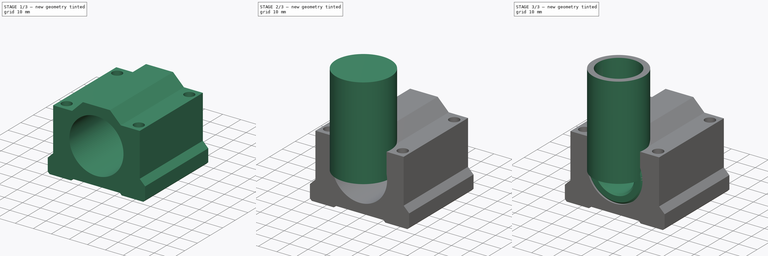
[diagram: build sequence overview — one tinted view per stage of 3, left to right]
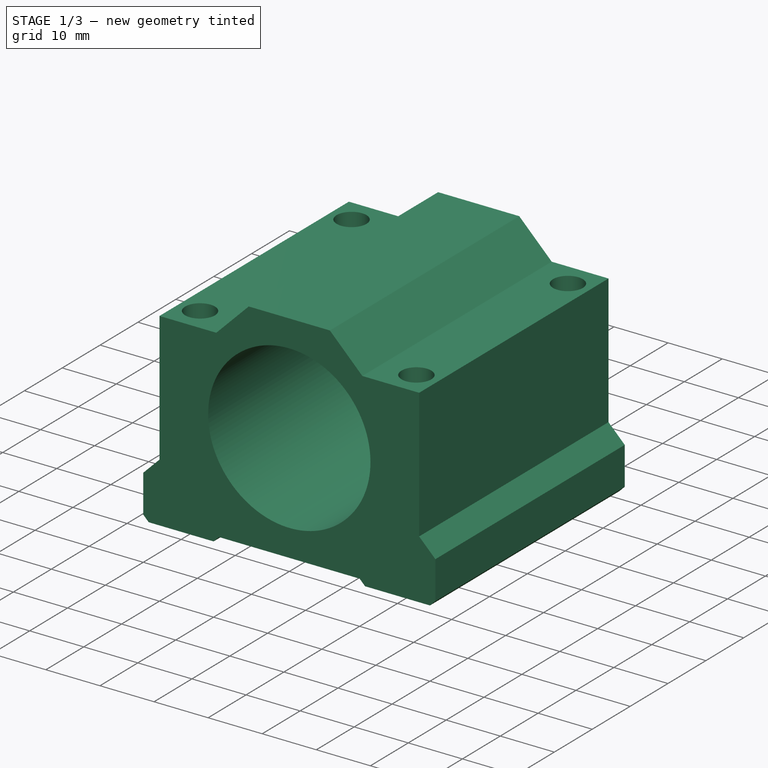
[diagram: stage 1 of 3 — iso view after this stage's code; geometry added in this stage tinted green]
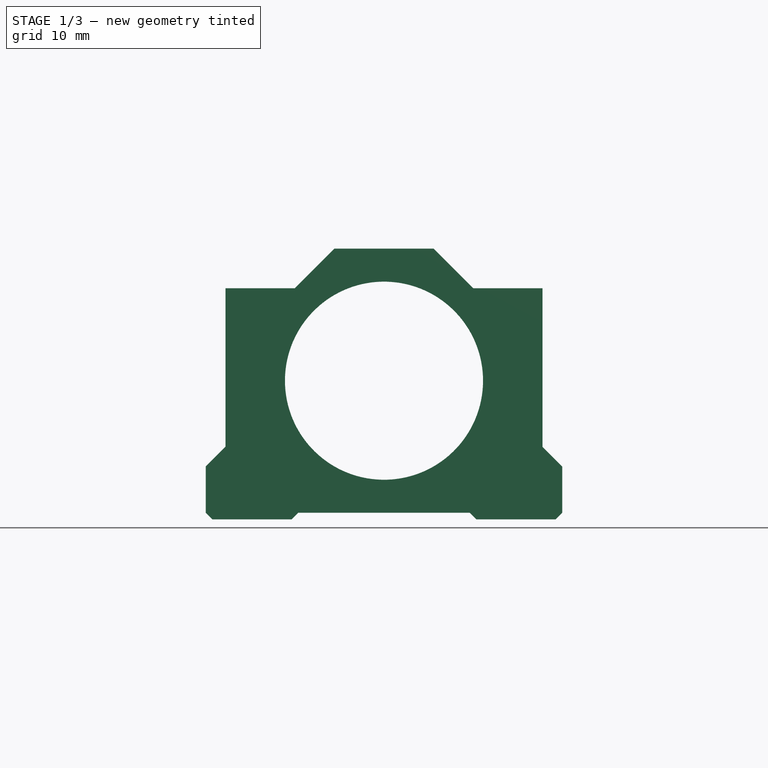
[diagram: stage 1 of 3 — front view after this stage's code; geometry added in this stage tinted green]
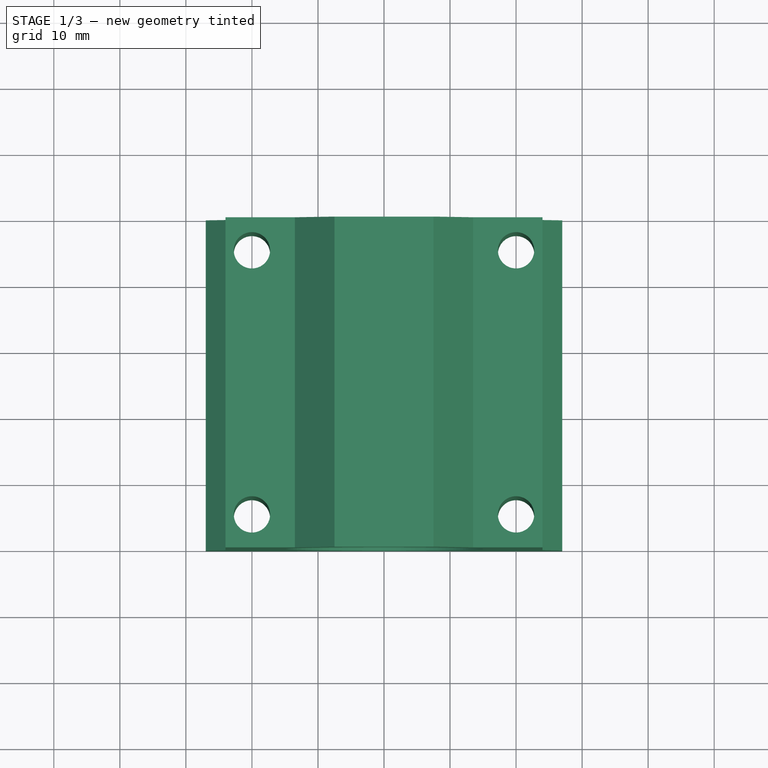
[diagram: stage 1 of 3 — top view after this stage's code; geometry added in this stage tinted green]
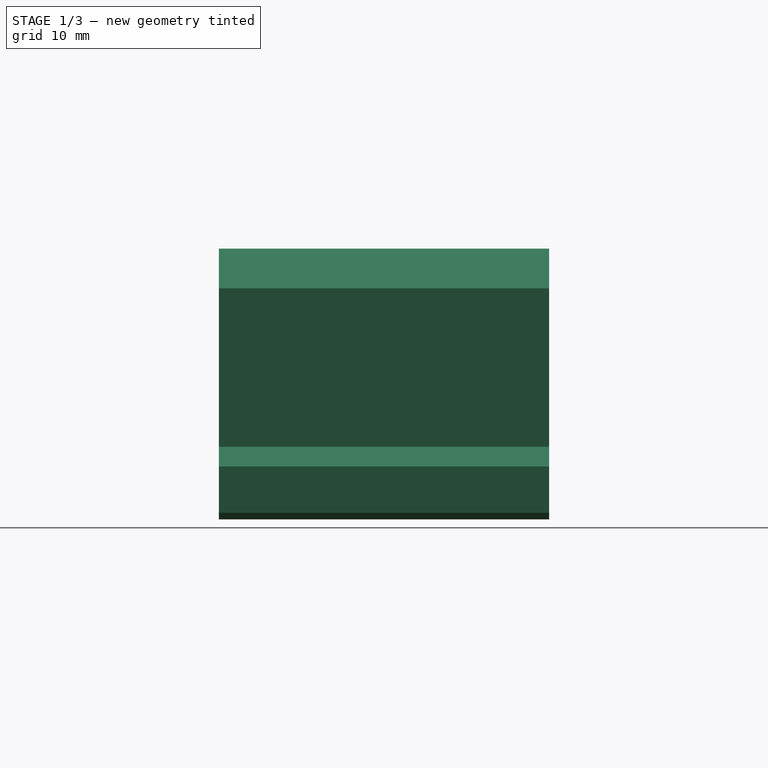
[diagram: stage 1 of 3 — right view after this stage's code; geometry added in this stage tinted green]
FCSTD DOCUMENT  (FreeCAD 0.14R3700 (Git))
Label: SC20UU
License: CC-BY 3.0
LicenseURL: http://creativecommons.org/licenses/by/3.0/
objects: Sketcher::SketchObject×3, PartDesign::Pad×2, Part::Cylinder×2, Part::Cut×1, Part::Chamfer×1, PartDesign::Pocket×1, App::DocumentObjectGroup×1, PartDesign::Mirrored×1
note: 14 computed .brp shape members not serialized (recipe doc carries the construction recipe); baked Part::Feature solids carry a one-line shape summary decoded from their .brp

FEATURE [Sketcher::SketchObject] Sketch001
  Placement = pos=(0,0,-3) rot=(1,0,0;1.5708rad)
  sketch-geometry (19):
    g0: LineSegment StartX=-27 StartY=-17 StartZ=0 EndX=-27 EndY=-10 EndZ=0
    g1: LineSegment StartX=-27 StartY=-10 StartZ=0 EndX=-24 EndY=-7 EndZ=0
    g2: LineSegment StartX=-24 StartY=-7 StartZ=0 EndX=-24 EndY=17 EndZ=0
    g3: LineSegment StartX=-24 StartY=17 StartZ=0 EndX=-13.5 EndY=17 EndZ=0
    g4: LineSegment StartX=-13.5 StartY=17 StartZ=0 EndX=-7.5 EndY=23 EndZ=0
    g5: LineSegment StartX=-7.5 StartY=23 StartZ=0 EndX=7.5 EndY=23 EndZ=0
    g6: LineSegment StartX=7.5 StartY=23 StartZ=0 EndX=13.5 EndY=17 EndZ=0
    g7: LineSegment StartX=13.5 StartY=17 StartZ=0 EndX=24 EndY=17 EndZ=0
    g8: LineSegment StartX=24 StartY=17 StartZ=0 EndX=24 EndY=-7 EndZ=0
    g9: LineSegment StartX=24 StartY=-7 StartZ=0 EndX=27 EndY=-10 EndZ=0
    g10: LineSegment StartX=27 StartY=-10 StartZ=0 EndX=27 EndY=-17 EndZ=0
    g11: LineSegment StartX=27 StartY=-17 StartZ=0 EndX=26 EndY=-18 EndZ=0
    g12: LineSegment StartX=26 StartY=-18 StartZ=0 EndX=14 EndY=-18 EndZ=0
    g13: LineSegment StartX=14 StartY=-18 StartZ=0 EndX=13 EndY=-17 EndZ=0
    g14: LineSegment StartX=13 StartY=-17 StartZ=0 EndX=-13 EndY=-17 EndZ=0
    g15: LineSegment StartX=-13 StartY=-17 StartZ=0 EndX=-14 EndY=-18 EndZ=0
    g16: LineSegment StartX=-14 StartY=-18 StartZ=0 EndX=-26 EndY=-18 EndZ=0
    g17: LineSegment StartX=-26 StartY=-18 StartZ=0 EndX=-27 EndY=-17 EndZ=0
    g18: Circle CenterX=0 CenterY=3 CenterZ=0 NormalX=0 NormalY=0 NormalZ=1 Radius=15
  constraints (25):
    c: Vertical(g0)
    c: Coincident(g0,g1)
    c: Coincident(g1,g2)
    c: Vertical(g2)
    c: Coincident(g2,g3)
    c: Horizontal(g3)
    c: Coincident(g3,g4)
    c: Coincident(g4,g5)
    c: Horizontal(g5)
    c: Coincident(g5,g6)
    c: Coincident(g6,g7)
    c: Coincident(g7,g8)
    c: Coincident(g8,g9)
    c: Coincident(g9,g10)
    c: Coincident(g10,g11)
    c: Coincident(g11,g12)
    c: Horizontal(g12)
    c: Coincident(g12,g13)
    c: Coincident(g13,g14)
    c: Horizontal(g14)
    c: Coincident(g14,g15)
    c: Coincident(g15,g16)
    c: Horizontal(g16)
    c: Coincident(g16,g17)
    c: Coincident(g17,g0)
FEATURE [PartDesign::Pad] Pad
  Length = 50
  Length2 = 100
  Placement = pos=(0,0,-3) rot=(1,0,0;1.5708rad)
  Reversed = true
  Sketch = -> Sketch001
  Type = 0
FEATURE [Sketcher::SketchObject] Sketch
  Placement = pos=(0,0,-21) rot=(1,0,0;3.14159rad)
  Support = -> Pad [Face17]
  sketch-geometry (2):
    g0: Circle CenterX=-20 CenterY=-5 CenterZ=0 NormalX=0 NormalY=0 NormalZ=1 Radius=2.75
    g1: Circle CenterX=-20 CenterY=-45 CenterZ=0 NormalX=0 NormalY=0 NormalZ=1 Radius=2.75
  constraints (6):
    c: Equal(g1,g0)
    c: Radius(g0) = 2.75
    c: DistanceY(g0,g1) = -40
    c: DistanceX(g0,g1) = 0
    c: DistanceX(g1) = -20
    c: DistanceY(g0) = -5
FEATURE [PartDesign::Pocket] Pocket
  Length = 5
  Placement = pos=(0,0,-3) rot=(1,0,0;1.5708rad)
  Sketch = -> Sketch
  Type = 1
FEATURE [App::DocumentObjectGroup] Grupo  label="SC20UU"
  Group = -> [Pad,Pad001,Chamfer,Pocket]
FEATURE [PartDesign::Mirrored] Mirrored  label="Base"
  MirrorPlane = -> Sketch [V_Axis]
  Originals = -> [Pocket]
  Placement = pos=(0,0,-3) rot=(1,0,0;1.5708rad)
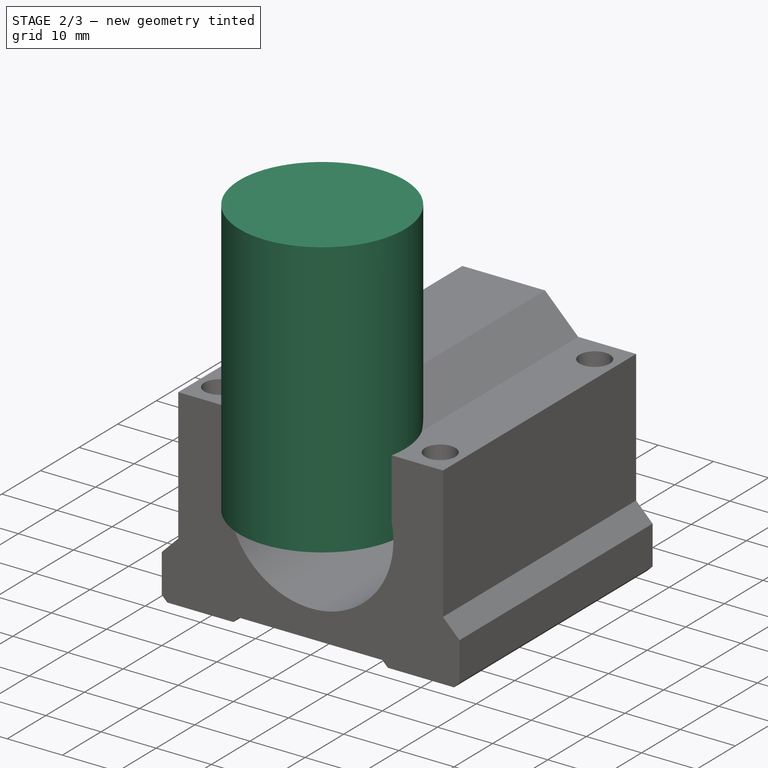
[diagram: stage 2 of 3 — iso view after this stage's code; geometry added in this stage tinted green]
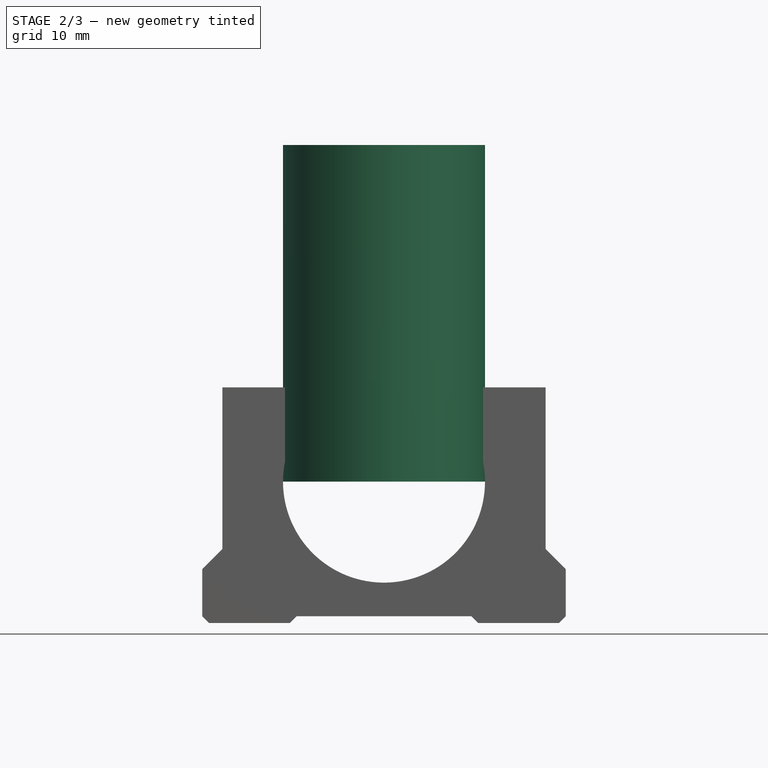
[diagram: stage 2 of 3 — front view after this stage's code; geometry added in this stage tinted green]
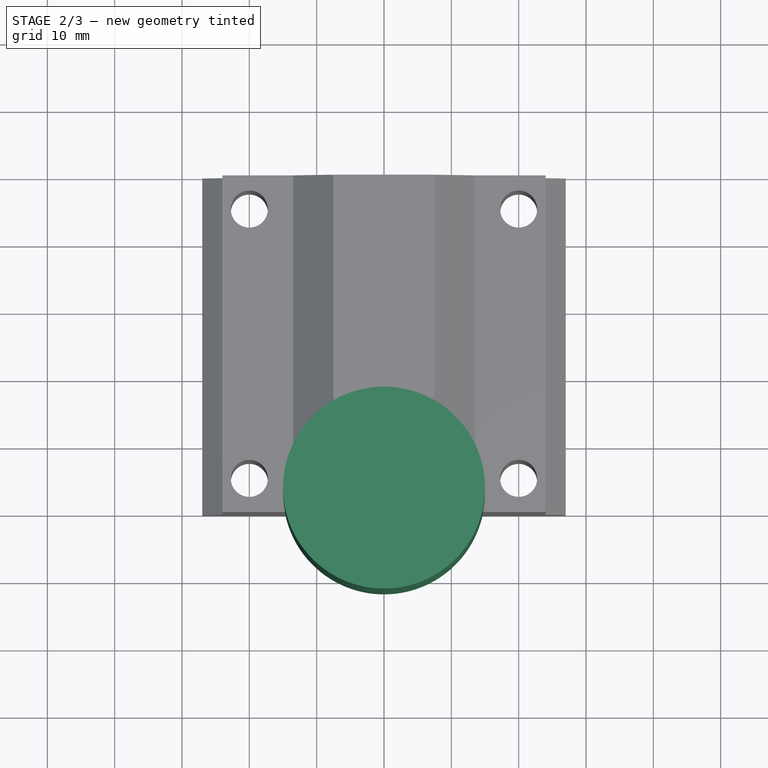
[diagram: stage 2 of 3 — top view after this stage's code; geometry added in this stage tinted green]
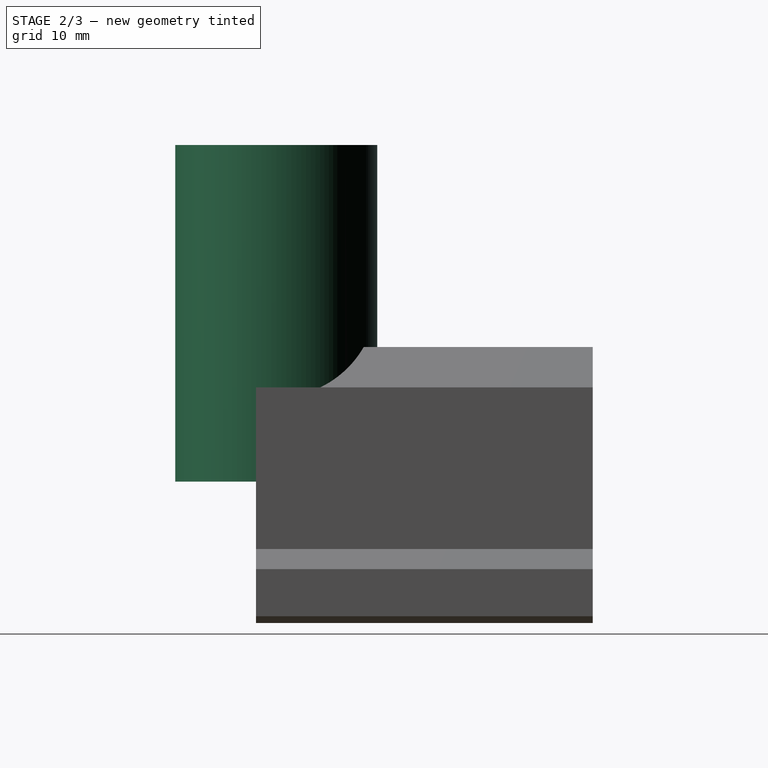
[diagram: stage 2 of 3 — right view after this stage's code; geometry added in this stage tinted green]
FEATURE [Part::Cylinder] Cylinder  label="Cilindro"
  Angle = 360
  Height = 50
  Placement = pos=(0,3,0) rot=(0,0,1;0rad)
  Radius = 10
FEATURE [Part::Cylinder] Cylinder001  label="Cilindro001"
  Angle = 360
  Height = 50
  Placement = pos=(0,3,0) rot=(0,0,1;0rad)
  Radius = 15
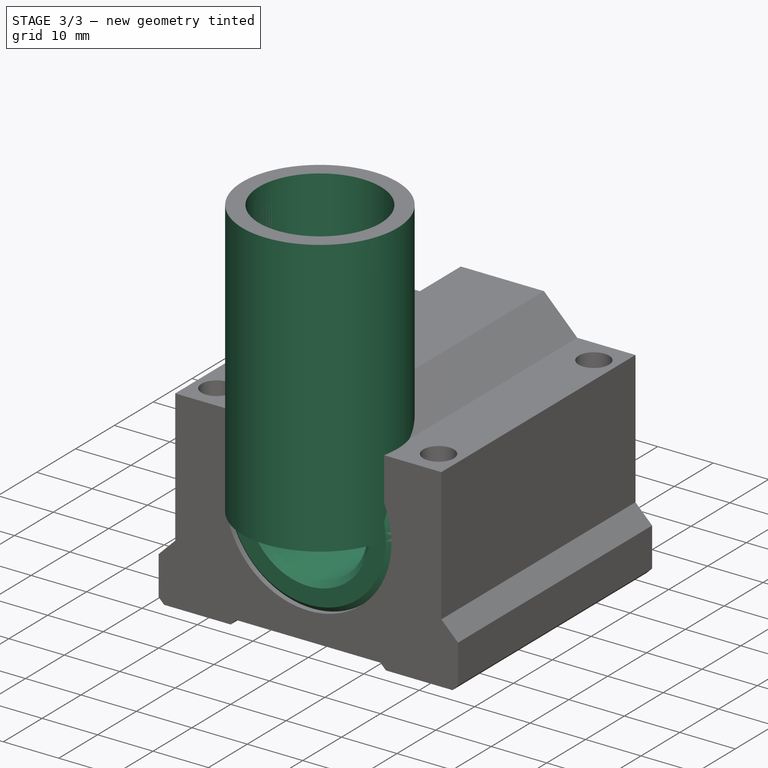
[diagram: stage 3 of 3 — iso view after this stage's code; geometry added in this stage tinted green]
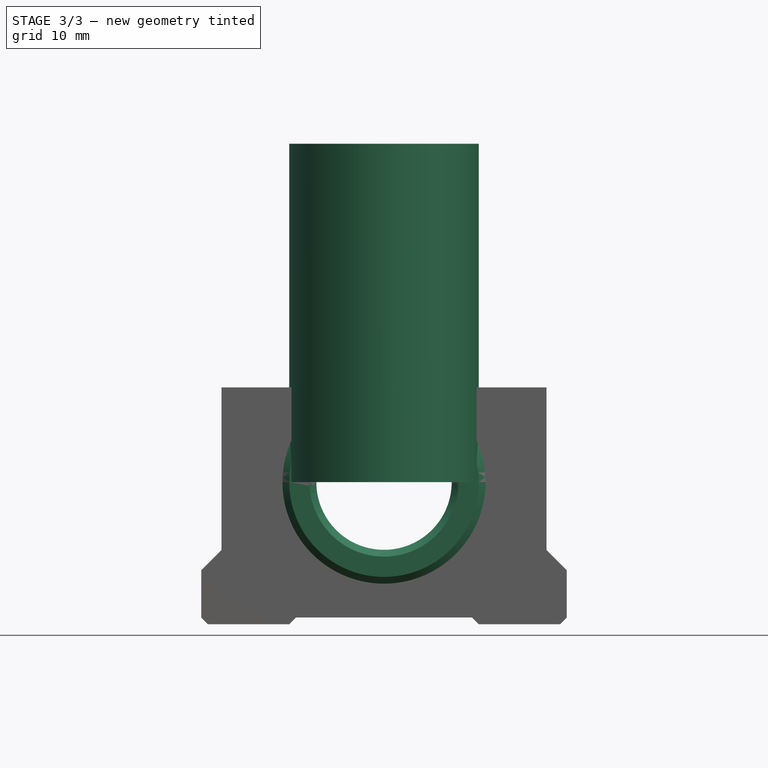
[diagram: stage 3 of 3 — front view after this stage's code; geometry added in this stage tinted green]
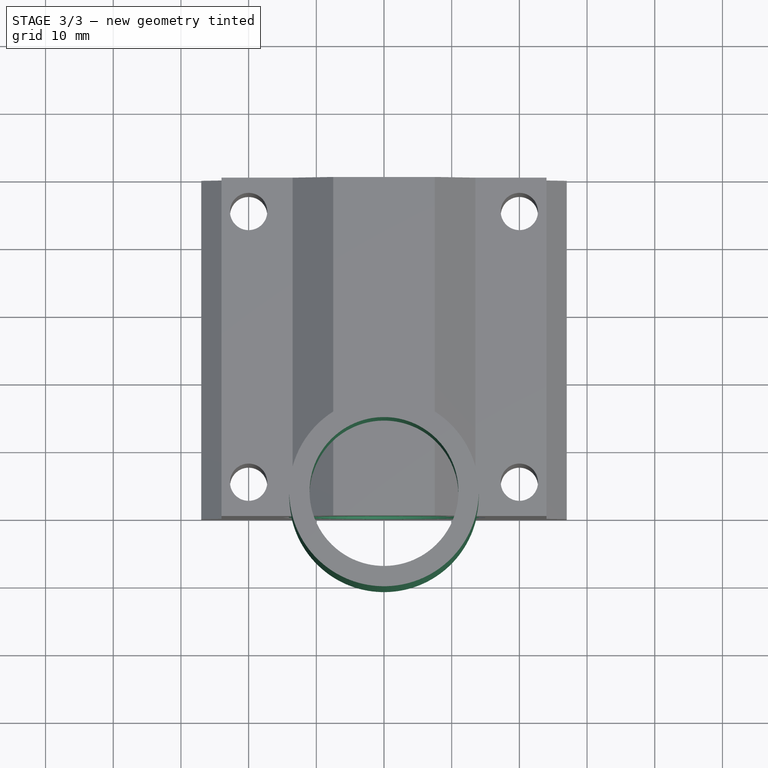
[diagram: stage 3 of 3 — top view after this stage's code; geometry added in this stage tinted green]
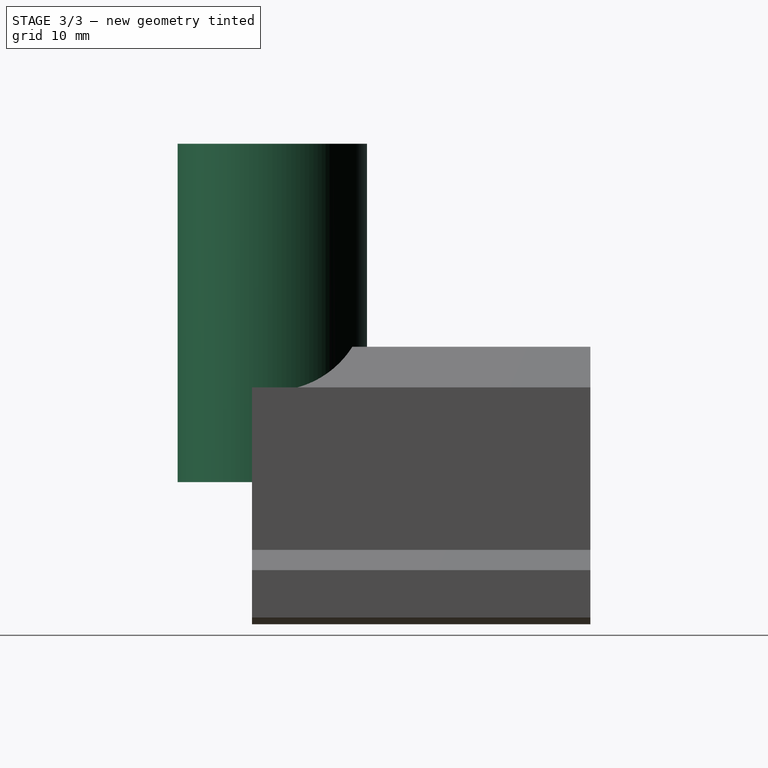
[diagram: stage 3 of 3 — right view after this stage's code; geometry added in this stage tinted green]
FEATURE [Sketcher::SketchObject] Sketch002
  Placement = pos=(0,0,50) rot=(0,0,1;0rad)
  sketch-geometry (2):
    g0: Circle CenterX=0 CenterY=3 CenterZ=0 NormalX=0 NormalY=0 NormalZ=1 Radius=14
    g1: Circle CenterX=0 CenterY=3 CenterZ=0 NormalX=0 NormalY=0 NormalZ=1 Radius=11
  constraints (1):
    c: Coincident(g1,g0)
FEATURE [PartDesign::Pad] Pad001
  Length = 50
  Length2 = 100
  Placement = pos=(0,0,50) rot=(0,0,1;0rad)
  Reversed = true
  Sketch = -> Sketch002
  Type = 0
FEATURE [Part::Cut] Cut
  Base = -> Cylinder001
  Tool = -> Cylinder
FEATURE [Part::Chamfer] Chamfer  label="Rodamiento"
  Base = -> Cut
  Edges = 4 edges r=1: [Edge1,Edge3,Edge4,Edge5]
  Placement = pos=(0,0,3) rot=(-1,0,0;1.5708rad)
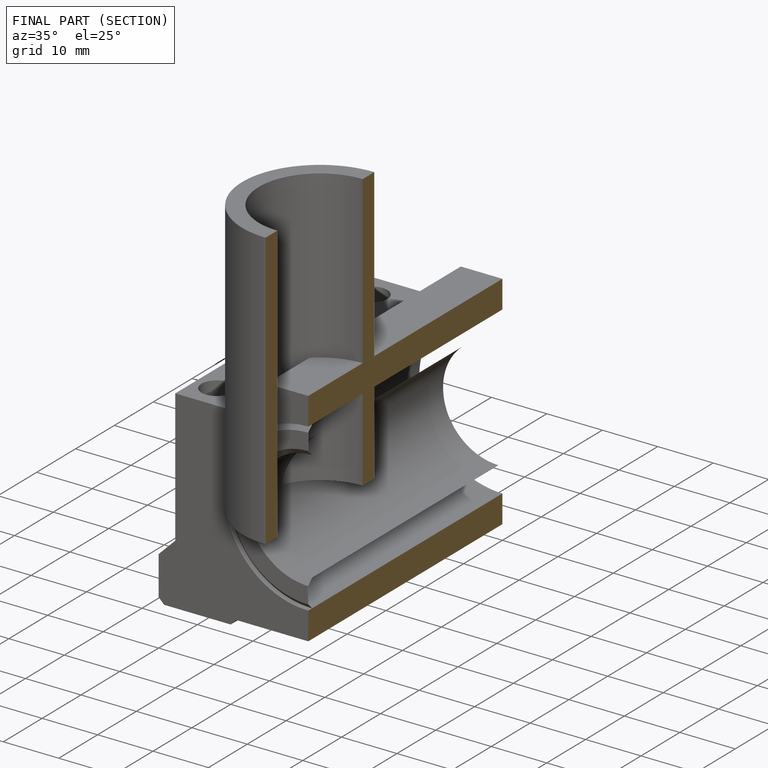
[diagram: finished part — half-section view (interior)]
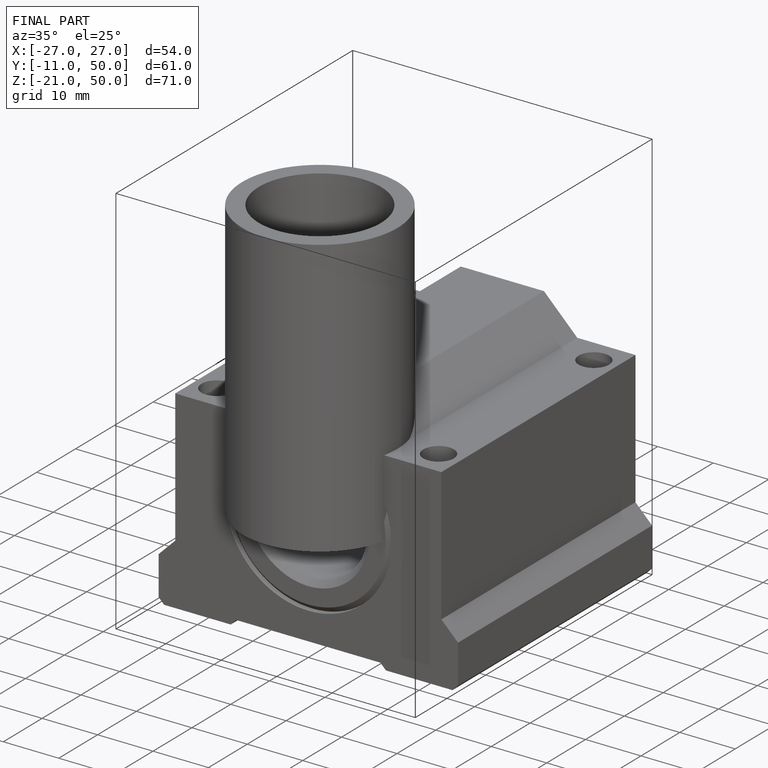
[diagram: finished part — iso view with bounding-box wireframe]
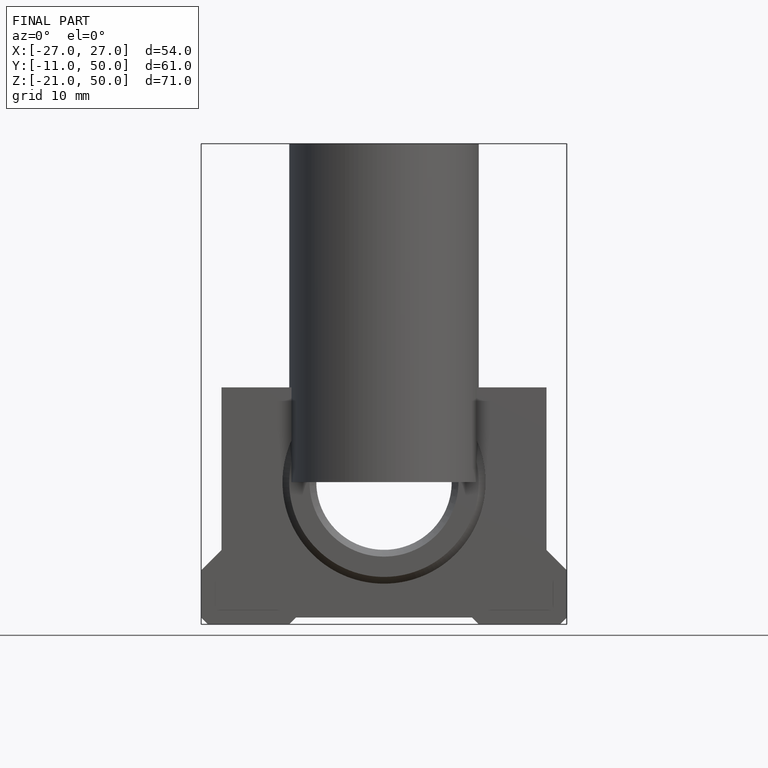
[diagram: finished part — front view with bounding-box wireframe]
